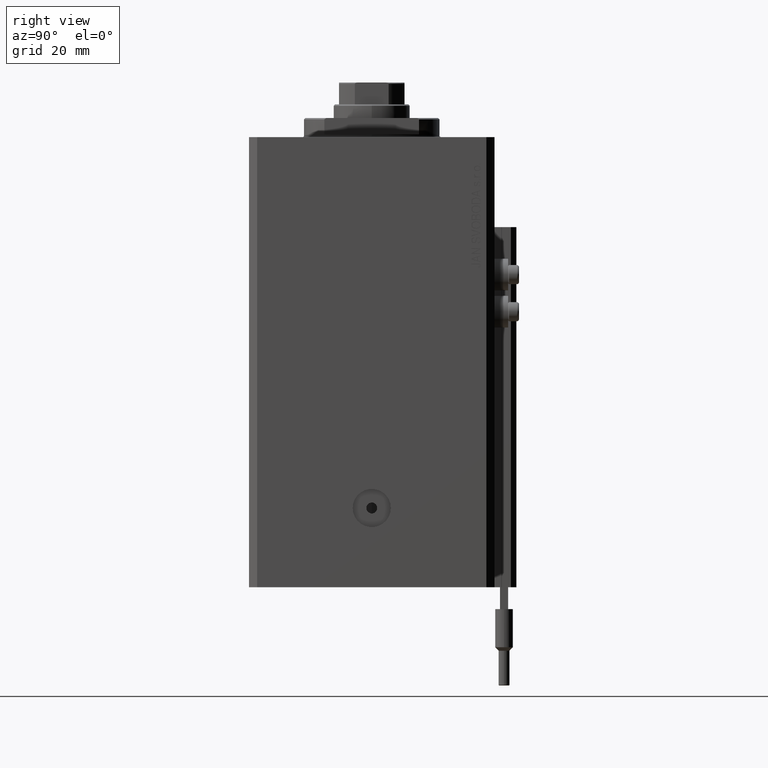
[diagram: clean part render]
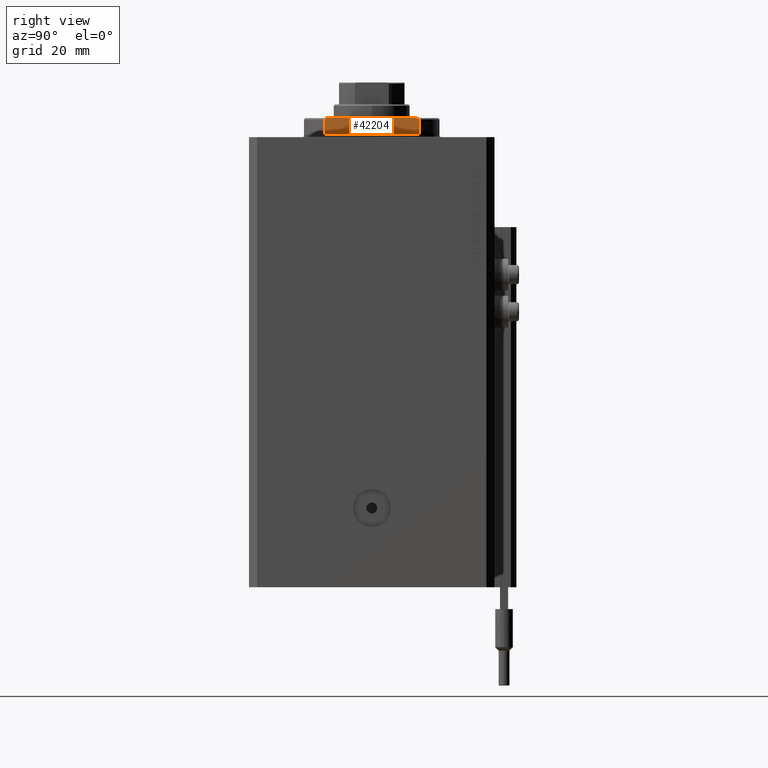
[diagram: same view with one face highlighted and labeled with its STEP entity id]
A machine part, right view. The second image highlights one B-rep face of the part: STEP entity #42204.
In plain terms, the highlighted planar face has unit normal (-1, 0, 0).
Its self-contained STEP definition (entity closure, byte-faithful):
#817 = DIRECTION ( 'NONE',  ( 1.000000000000000000, 0.000000000000000000, 0.000000000000000000 ) ) ;
#836 = ORIENTED_EDGE ( 'NONE', *, *, #27607, .T. ) ;
#1539 = FACE_OUTER_BOUND ( 'NONE', #36894, .T. ) ;
#2445 = DIRECTION ( 'NONE',  ( -0.000000000000000000, -1.000000000000000000, -0.000000000000000000 ) ) ;
#3168 = EDGE_CURVE ( 'NONE', #18747, #30975, #6346, .T. ) ;
#4220 = DIRECTION ( 'NONE',  ( 0.000000000000000000, 0.000000000000000000, -1.000000000000000000 ) ) ;
#4359 = EDGE_CURVE ( 'NONE', #34322, #33508, #10220, .T. ) ;
#5849 = CARTESIAN_POINT ( 'NONE',  ( -18.00000000000000000, 17.34935157289747920, -7.000000000000000000 ) ) ;
#6334 = LINE ( 'NONE', #21180, #34499 ) ;
#6346 = B_SPLINE_CURVE_WITH_KNOTS ( 'NONE', 3,
 ( #28305, #6857, #18056, #42902 ),
 .UNSPECIFIED., .F., .F.,
 ( 4, 4 ),
 ( 0.08262823419570358707, 0.08350100171199341392 ),
 .UNSPECIFIED. ) ;
#6857 = CARTESIAN_POINT ( 'NONE',  ( -18.00000000000000000, -16.86466398118529497, -6.834542714452327417 ) ) ;
#7352 = VERTEX_POINT ( 'NONE', #34707 ) ;
#8442 = CARTESIAN_POINT ( 'NONE',  ( -18.00000000000000000, 16.62077013859462227, -7.000000000000000000 ) ) ;
#9982 = CARTESIAN_POINT ( 'NONE',  ( -18.00000000000000000, -41.24318125460256113, -1.000000000000000000 ) ) ;
#10220 = LINE ( 'NONE', #9982, #13751 ) ;
#10545 = CARTESIAN_POINT ( 'NONE',  ( -18.00000000000000000, 17.34935157289747920, -1.000000000000000000 ) ) ;
#12698 = ORIENTED_EDGE ( 'NONE', *, *, #33243, .T. ) ;
#13751 = VECTOR ( 'NONE', #2445, 1000.000000000000000 ) ;
#15002 = CARTESIAN_POINT ( 'NONE',  ( -18.00000000000000000, -17.34935157289747920, -6.499999999999956479 ) ) ;
#15502 = CARTESIAN_POINT ( 'NONE',  ( -18.00000000000000000, 16.86453887646376515, -6.834627585342919254 ) ) ;
#15875 = CARTESIAN_POINT ( 'NONE',  ( -18.00000000000000000, -17.34935157289747920, -1.000000000000000000 ) ) ;
#17670 = CARTESIAN_POINT ( 'NONE',  ( -18.00000000000000000, -16.62077013859462227, -7.000000000000000000 ) ) ;
#17836 = ORIENTED_EDGE ( 'NONE', *, *, #3168, .T. ) ;
#18056 = CARTESIAN_POINT ( 'NONE',  ( -18.00000000000000000, -17.10749533145902745, -6.667841958512572553 ) ) ;
#18747 = VERTEX_POINT ( 'NONE', #17670 ) ;
#21180 = CARTESIAN_POINT ( 'NONE',  ( -18.00000000000000000, -41.24318125460256113, -7.000000000000000000 ) ) ;
#23585 = VECTOR ( 'NONE', #46740, 1000.000000000000000 ) ;
#26466 = CARTESIAN_POINT ( 'NONE',  ( -18.00000000000000000, 17.34935157289748986, -6.499999999999965361 ) ) ;
#26608 = CARTESIAN_POINT ( 'NONE',  ( -18.00000000000000000, -41.24318125460256113, -1.000000000000000000 ) ) ;
#26632 = EDGE_CURVE ( 'NONE', #7352, #34322, #39203, .T. ) ;
#27607 = EDGE_CURVE ( 'NONE', #40256, #18747, #6334, .T. ) ;
#27618 = CARTESIAN_POINT ( 'NONE',  ( -18.00000000000000000, 16.62077013859462227, -7.000000000000000000 ) ) ;
#28305 = CARTESIAN_POINT ( 'NONE',  ( -18.00000000000000000, -16.62077013859462227, -7.000000000000000000 ) ) ;
#28725 = AXIS2_PLACEMENT_3D ( 'NONE', #26608, #817, #4220 ) ;
#29614 = LINE ( 'NONE', #34699, #41050 ) ;
#30088 = DIRECTION ( 'NONE',  ( 0.000000000000000000, 0.000000000000000000, -1.000000000000000000 ) ) ;
#30975 = VERTEX_POINT ( 'NONE', #15002 ) ;
#33243 = EDGE_CURVE ( 'NONE', #7352, #40256, #37540, .T. ) ;
#33508 = VERTEX_POINT ( 'NONE', #15875 ) ;
#34322 = VERTEX_POINT ( 'NONE', #10545 ) ;
#34499 = VECTOR ( 'NONE', #39922, 1000.000000000000000 ) ;
#34699 = CARTESIAN_POINT ( 'NONE',  ( -18.00000000000000000, -17.34935157289747920, -7.000000000000000000 ) ) ;
#34707 = CARTESIAN_POINT ( 'NONE',  ( -18.00000000000000000, 17.34935157289748986, -6.499999999999965361 ) ) ;
#35319 = EDGE_CURVE ( 'NONE', #33508, #30975, #29614, .T. ) ;
#36894 = EDGE_LOOP ( 'NONE', ( #12698, #836, #17836, #37332, #44547, #47035 ) ) ;
#37195 = CARTESIAN_POINT ( 'NONE',  ( -18.00000000000000000, 17.10737464676705955, -6.667925710558589181 ) ) ;
#37332 = ORIENTED_EDGE ( 'NONE', *, *, #35319, .F. ) ;
#37540 = B_SPLINE_CURVE_WITH_KNOTS ( 'NONE', 3,
 ( #26466, #37195, #15502, #8442 ),
 .UNSPECIFIED., .F., .F.,
 ( 4, 4 ),
 ( 0.04589228951331350559, 0.04678015196826825622 ),
 .UNSPECIFIED. ) ;
#39203 = LINE ( 'NONE', #5849, #23585 ) ;
#39922 = DIRECTION ( 'NONE',  ( -0.000000000000000000, -1.000000000000000000, -0.000000000000000000 ) ) ;
#40256 = VERTEX_POINT ( 'NONE', #27618 ) ;
#41050 = VECTOR ( 'NONE', #30088, 1000.000000000000000 ) ;
#42204 = ADVANCED_FACE ( 'NONE', ( #1539 ), #45097, .F. ) ;
#42902 = CARTESIAN_POINT ( 'NONE',  ( -18.00000000000000000, -17.34935157289747920, -6.499999999999956479 ) ) ;
#44547 = ORIENTED_EDGE ( 'NONE', *, *, #4359, .F. ) ;
#45097 = PLANE ( 'NONE',  #28725 ) ;
#46740 = DIRECTION ( 'NONE',  ( -0.000000000000000000, -0.000000000000000000, 1.000000000000000000 ) ) ;
#47035 = ORIENTED_EDGE ( 'NONE', *, *, #26632, .F. ) ;